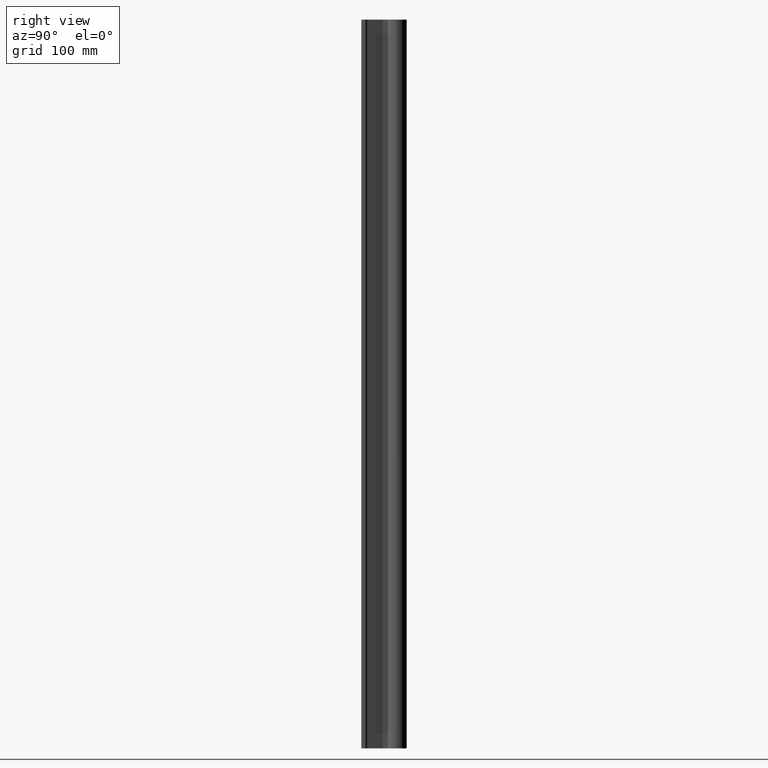
[diagram: clean part render]
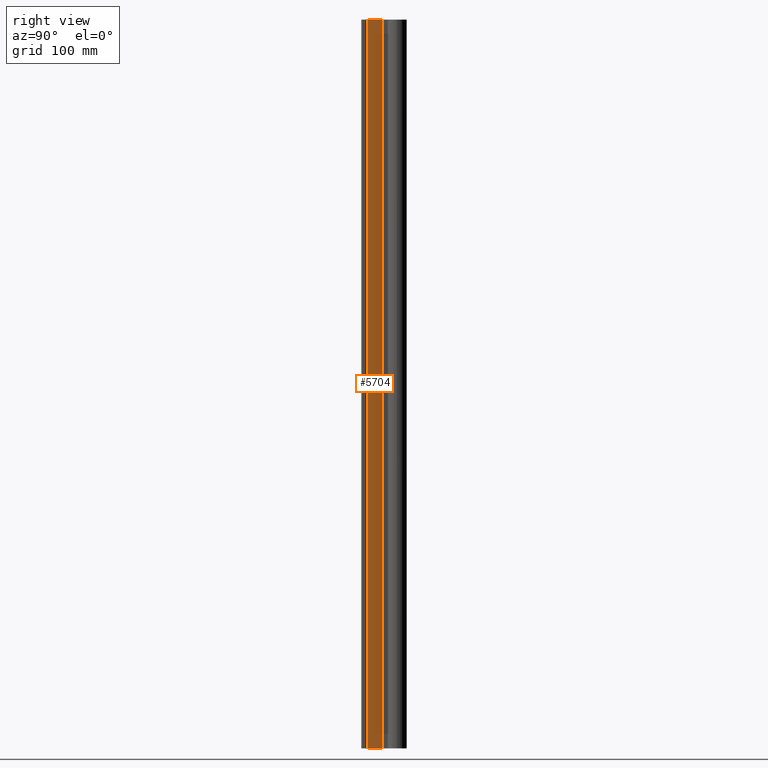
[diagram: same view with one face highlighted and labeled with its STEP entity id]
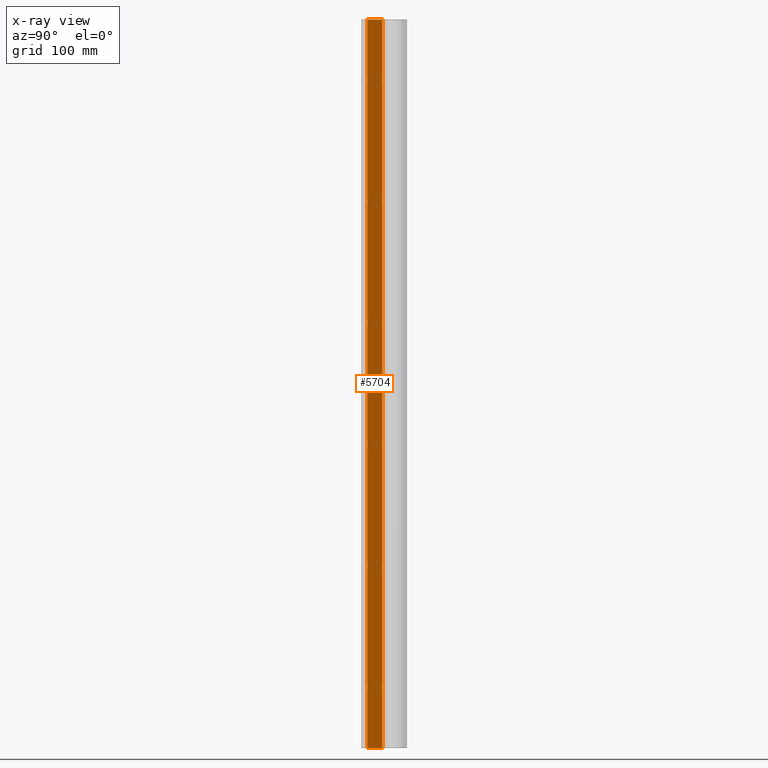
[diagram: x-ray of the same camera — body ghosted, the highlighted face saturated]
A machine part, right view. The second image highlights one B-rep face of the part: STEP entity #5704.
The next image is the same camera in x-ray: the body ghosted, the highlighted face saturated — about 0% of this face is hidden behind the body in this view.
In plain terms, the highlighted planar face has unit normal (0.9703, 0.2419, 0).
Its self-contained STEP definition (entity closure, byte-faithful):
#417 = VECTOR ( 'NONE', #4361, 39.37007874015748143 ) ;
#666 = ORIENTED_EDGE ( 'NONE', *, *, #5054, .F. ) ;
#807 = EDGE_CURVE ( 'NONE', #9405, #7234, #7877, .T. ) ;
#829 = CARTESIAN_POINT ( 'NONE',  ( 0.4367880495966964816, 0.2973798815999993961, 0.000000000000000000 ) ) ;
#2454 = EDGE_LOOP ( 'NONE', ( #666, #10944, #11131, #9139 ) ) ;
#2621 = VECTOR ( 'NONE', #12699, 39.37007874015748143 ) ;
#2679 = DIRECTION ( 'NONE',  ( 0.9702957262790985471, 0.2419218955872262378, -0.000000000000000000 ) ) ;
#2742 = FACE_OUTER_BOUND ( 'NONE', #2454, .T. ) ;
#2877 = DIRECTION ( 'NONE',  ( -0.2419218955872262378, 0.9702957262790985471, 0.000000000000000000 ) ) ;
#3445 = AXIS2_PLACEMENT_3D ( 'NONE', #7157, #2679, #5044 ) ;
#3653 = DIRECTION ( 'NONE',  ( 0.000000000000000000, 0.000000000000000000, 1.000000000000000000 ) ) ;
#3907 = LINE ( 'NONE', #829, #11745 ) ;
#4161 = LINE ( 'NONE', #8441, #2621 ) ;
#4361 = DIRECTION ( 'NONE',  ( 0.2419218955872262378, -0.9702957262790985471, 0.000000000000000000 ) ) ;
#5044 = DIRECTION ( 'NONE',  ( -0.2419218955872262378, 0.9702957262790985471, 0.000000000000000000 ) ) ;
#5054 = EDGE_CURVE ( 'NONE', #9405, #12083, #8630, .T. ) ;
#5704 = ADVANCED_FACE ( 'NONE', ( #2742 ), #5961, .T. ) ;
#5961 = PLANE ( 'NONE',  #3445 ) ;
#6540 = CARTESIAN_POINT ( 'NONE',  ( 0.2518565171966969940, 1.039099745799999752, -36.00000000000000000 ) ) ;
#6917 = EDGE_CURVE ( 'NONE', #12083, #13282, #4161, .T. ) ;
#7157 = CARTESIAN_POINT ( 'NONE',  ( 0.4367880495966964816, 0.2973798815999993961, -38.49573696227415098 ) ) ;
#7234 = VERTEX_POINT ( 'NONE', #7519 ) ;
#7519 = CARTESIAN_POINT ( 'NONE',  ( 0.2518565171966969940, 1.039099745799999752, 0.000000000000000000 ) ) ;
#7577 = CARTESIAN_POINT ( 'NONE',  ( 0.4367880495966964260, 0.2973798815999993961, -36.00000000000000000 ) ) ;
#7877 = LINE ( 'NONE', #9108, #10554 ) ;
#8441 = CARTESIAN_POINT ( 'NONE',  ( 0.4367880495966964816, 0.2973798815999993961, -38.49573696227415098 ) ) ;
#8630 = LINE ( 'NONE', #12081, #417 ) ;
#9108 = CARTESIAN_POINT ( 'NONE',  ( 0.2518565171966969940, 1.039099745799999752, -38.49573696227415098 ) ) ;
#9139 = ORIENTED_EDGE ( 'NONE', *, *, #6917, .F. ) ;
#9405 = VERTEX_POINT ( 'NONE', #6540 ) ;
#10554 = VECTOR ( 'NONE', #3653, 39.37007874015748143 ) ;
#10944 = ORIENTED_EDGE ( 'NONE', *, *, #807, .T. ) ;
#11131 = ORIENTED_EDGE ( 'NONE', *, *, #11649, .F. ) ;
#11649 = EDGE_CURVE ( 'NONE', #13282, #7234, #3907, .T. ) ;
#11745 = VECTOR ( 'NONE', #2877, 39.37007874015748854 ) ;
#12081 = CARTESIAN_POINT ( 'NONE',  ( 0.4367880495966964816, 0.2973798815999993961, -36.00000000000000000 ) ) ;
#12083 = VERTEX_POINT ( 'NONE', #7577 ) ;
#12638 = CARTESIAN_POINT ( 'NONE',  ( 0.4367880495966964260, 0.2973798815999993961, 0.000000000000000000 ) ) ;
#12699 = DIRECTION ( 'NONE',  ( 0.000000000000000000, 0.000000000000000000, 1.000000000000000000 ) ) ;
#13282 = VERTEX_POINT ( 'NONE', #12638 ) ;